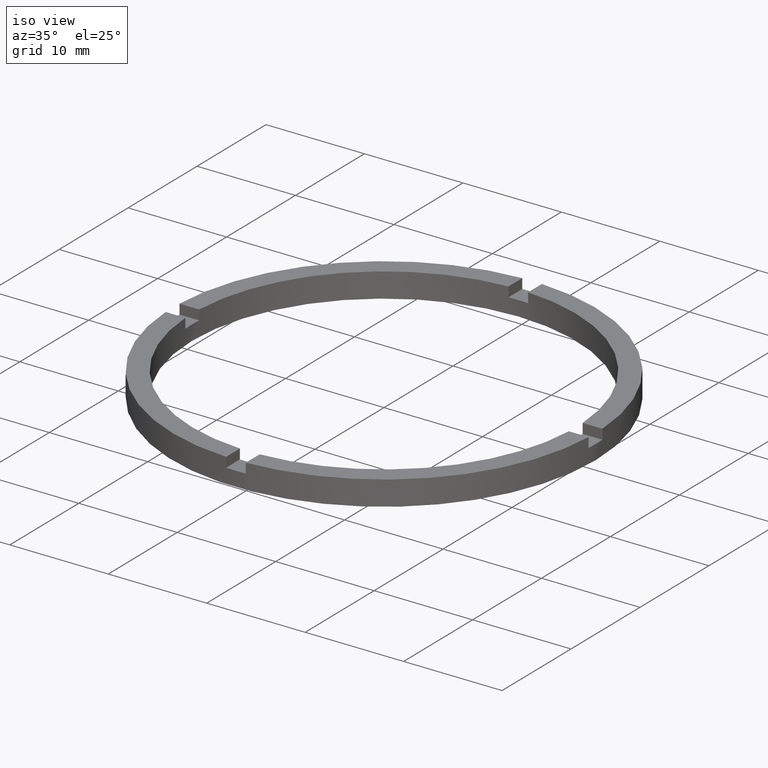
[diagram: clean part render]
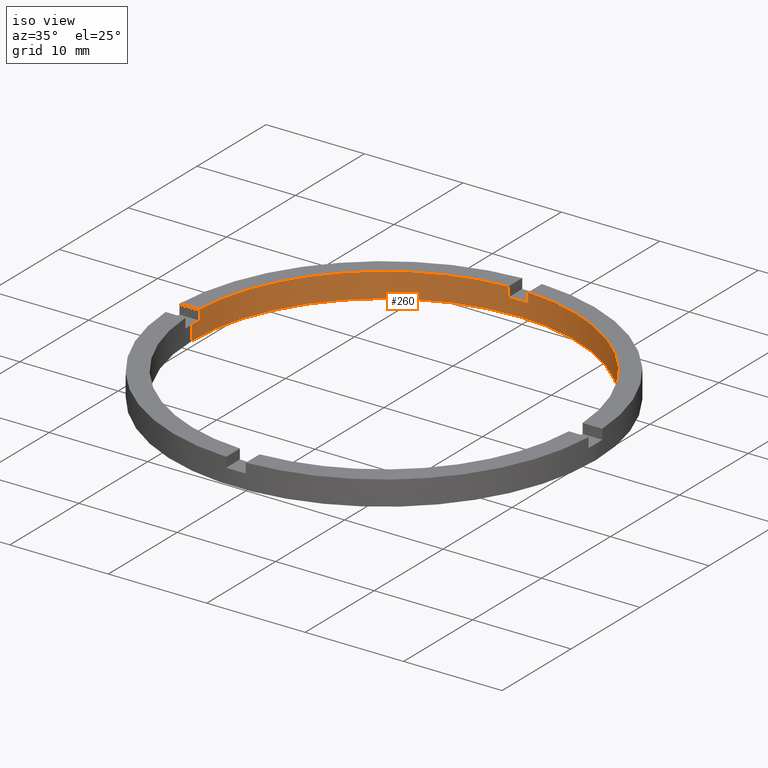
[diagram: same view with one face highlighted and labeled with its STEP entity id]
A machine part, iso view. The second image highlights one B-rep face of the part: STEP entity #260.
In plain terms, the highlighted cylindrical surface (partial cylindrical patch) has radius 19.5 mm, axis along (-0, -0, -1).
Its self-contained STEP definition (entity closure, byte-faithful):
#5 = CARTESIAN_POINT ( 'NONE',  ( -19.50000000000000000, 0.000000000000000000, 1.500000000000000000 ) ) ;
#10 = VECTOR ( 'NONE', #240, 1000.000000000000000 ) ;
#14 = EDGE_CURVE ( 'NONE', #647, #742, #169, .T. ) ;
#23 = CARTESIAN_POINT ( 'NONE',  ( -19.50000000000000000, 0.000000000000000000, 2.500000000000000000 ) ) ;
#30 = CARTESIAN_POINT ( 'NONE',  ( -19.47434209415044748, 0.9999999999999753530, 2.500000000000000000 ) ) ;
#47 = AXIS2_PLACEMENT_3D ( 'NONE', #744, #220, #323 ) ;
#50 = EDGE_CURVE ( 'NONE', #149, #697, #397, .T. ) ;
#56 = DIRECTION ( 'NONE',  ( 1.000000000000000000, 0.000000000000000000, 0.000000000000000000 ) ) ;
#57 = EDGE_CURVE ( 'NONE', #357, #367, #692, .T. ) ;
#58 = CARTESIAN_POINT ( 'NONE',  ( -19.50000000000000000, 0.000000000000000000, 0.000000000000000000 ) ) ;
#63 = DIRECTION ( 'NONE',  ( 1.000000000000000000, 0.000000000000000000, 0.000000000000000000 ) ) ;
#66 = AXIS2_PLACEMENT_3D ( 'NONE', #527, #354, #298 ) ;
#67 = CARTESIAN_POINT ( 'NONE',  ( 0.9999999999999744649, 19.47434209415044748, 1.500000000000000000 ) ) ;
#95 = ORIENTED_EDGE ( 'NONE', *, *, #304, .T. ) ;
#101 = VERTEX_POINT ( 'NONE', #468 ) ;
#108 = VERTEX_POINT ( 'NONE', #268 ) ;
#113 = VERTEX_POINT ( 'NONE', #743 ) ;
#115 = DIRECTION ( 'NONE',  ( -0.000000000000000000, -0.000000000000000000, -1.000000000000000000 ) ) ;
#117 = AXIS2_PLACEMENT_3D ( 'NONE', #202, #246, #56 ) ;
#127 = DIRECTION ( 'NONE',  ( 1.000000000000000000, 0.000000000000000000, 0.000000000000000000 ) ) ;
#128 = ORIENTED_EDGE ( 'NONE', *, *, #327, .F. ) ;
#148 = ORIENTED_EDGE ( 'NONE', *, *, #366, .F. ) ;
#149 = VERTEX_POINT ( 'NONE', #401 ) ;
#151 = DIRECTION ( 'NONE',  ( 0.000000000000000000, -0.000000000000000000, 1.000000000000000000 ) ) ;
#153 = ORIENTED_EDGE ( 'NONE', *, *, #57, .F. ) ;
#156 = CARTESIAN_POINT ( 'NONE',  ( 19.47434209415045459, 0.9999999999998419042, 2.500000000000000000 ) ) ;
#169 = CIRCLE ( 'NONE', #598, 19.50000000000000000 ) ;
#171 = ORIENTED_EDGE ( 'NONE', *, *, #349, .F. ) ;
#202 = CARTESIAN_POINT ( 'NONE',  ( 0.000000000000000000, 0.000000000000000000, 2.500000000000000000 ) ) ;
#210 = DIRECTION ( 'NONE',  ( -1.000000000000000000, 0.000000000000000000, 0.000000000000000000 ) ) ;
#220 = DIRECTION ( 'NONE',  ( 0.000000000000000000, 0.000000000000000000, 1.000000000000000000 ) ) ;
#225 = CIRCLE ( 'NONE', #117, 19.50000000000000000 ) ;
#235 = CIRCLE ( 'NONE', #66, 19.50000000000000000 ) ;
#240 = DIRECTION ( 'NONE',  ( 0.000000000000000000, 0.000000000000000000, 1.000000000000000000 ) ) ;
#241 = DIRECTION ( 'NONE',  ( -0.000000000000000000, -0.000000000000000000, -1.000000000000000000 ) ) ;
#246 = DIRECTION ( 'NONE',  ( 0.000000000000000000, 0.000000000000000000, 1.000000000000000000 ) ) ;
#248 = VECTOR ( 'NONE', #504, 1000.000000000000000 ) ;
#251 = VECTOR ( 'NONE', #588, 1000.000000000000000 ) ;
#256 = LINE ( 'NONE', #345, #10 ) ;
#257 = DIRECTION ( 'NONE',  ( 0.000000000000000000, 0.000000000000000000, 1.000000000000000000 ) ) ;
#258 = CIRCLE ( 'NONE', #47, 19.50000000000000000 ) ;
#260 = ADVANCED_FACE ( 'NONE', ( #717 ), #710, .F. ) ;
#263 = CARTESIAN_POINT ( 'NONE',  ( 0.9999999999999744649, 19.47434209415044748, 2.500000000000000000 ) ) ;
#265 = AXIS2_PLACEMENT_3D ( 'NONE', #719, #151, #633 ) ;
#268 = CARTESIAN_POINT ( 'NONE',  ( 19.50000000000000000, 2.388061258337338939E-15, 0.000000000000000000 ) ) ;
#293 = CARTESIAN_POINT ( 'NONE',  ( 0.9999999999999744649, 19.47434209415044748, 2.500000000000000000 ) ) ;
#298 = DIRECTION ( 'NONE',  ( 1.000000000000000000, 0.000000000000000000, 0.000000000000000000 ) ) ;
#304 = EDGE_CURVE ( 'NONE', #101, #367, #225, .T. ) ;
#307 = CARTESIAN_POINT ( 'NONE',  ( 0.000000000000000000, 0.000000000000000000, 1.500000000000000000 ) ) ;
#323 = DIRECTION ( 'NONE',  ( 1.000000000000000000, 0.000000000000000000, 0.000000000000000000 ) ) ;
#327 = EDGE_CURVE ( 'NONE', #108, #450, #235, .T. ) ;
#341 = CARTESIAN_POINT ( 'NONE',  ( 19.50000000000000000, 2.388061258337338939E-15, 1.500000000000000000 ) ) ;
#345 = CARTESIAN_POINT ( 'NONE',  ( -19.47434209415044748, 0.9999999999999753530, 2.500000000000000000 ) ) ;
#348 = ORIENTED_EDGE ( 'NONE', *, *, #445, .T. ) ;
#349 = EDGE_CURVE ( 'NONE', #622, #108, #514, .T. ) ;
#353 = EDGE_LOOP ( 'NONE', ( #171, #649, #148, #95, #153, #679, #655, #641, #671, #646, #348, #128 ) ) ;
#354 = DIRECTION ( 'NONE',  ( 0.000000000000000000, 0.000000000000000000, 1.000000000000000000 ) ) ;
#357 = VERTEX_POINT ( 'NONE', #67 ) ;
#366 = EDGE_CURVE ( 'NONE', #101, #691, #776, .T. ) ;
#367 = VERTEX_POINT ( 'NONE', #293 ) ;
#376 = CARTESIAN_POINT ( 'NONE',  ( 0.000000000000000000, 0.000000000000000000, 2.500000000000000000 ) ) ;
#379 = EDGE_CURVE ( 'NONE', #149, #113, #762, .T. ) ;
#385 = CARTESIAN_POINT ( 'NONE',  ( 19.50000000000000000, 2.388061258337338939E-15, 2.500000000000000000 ) ) ;
#397 = CIRCLE ( 'NONE', #593, 19.50000000000000000 ) ;
#401 = CARTESIAN_POINT ( 'NONE',  ( -1.000000000000025535, 19.47434209415044748, 2.500000000000000000 ) ) ;
#413 = AXIS2_PLACEMENT_3D ( 'NONE', #629, #115, #210 ) ;
#445 = EDGE_CURVE ( 'NONE', #742, #450, #503, .T. ) ;
#450 = VERTEX_POINT ( 'NONE', #58 ) ;
#468 = CARTESIAN_POINT ( 'NONE',  ( 19.47434209415045459, 0.9999999999998419042, 2.500000000000000000 ) ) ;
#480 = EDGE_CURVE ( 'NONE', #357, #113, #507, .T. ) ;
#503 = LINE ( 'NONE', #23, #248 ) ;
#504 = DIRECTION ( 'NONE',  ( -0.000000000000000000, -0.000000000000000000, -1.000000000000000000 ) ) ;
#507 = CIRCLE ( 'NONE', #265, 19.50000000000000000 ) ;
#510 = VECTOR ( 'NONE', #516, 1000.000000000000000 ) ;
#514 = LINE ( 'NONE', #385, #510 ) ;
#516 = DIRECTION ( 'NONE',  ( -0.000000000000000000, -0.000000000000000000, -1.000000000000000000 ) ) ;
#527 = CARTESIAN_POINT ( 'NONE',  ( 0.000000000000000000, 0.000000000000000000, 0.000000000000000000 ) ) ;
#533 = CARTESIAN_POINT ( 'NONE',  ( -1.000000000000025535, 19.47434209415044748, 2.500000000000000000 ) ) ;
#538 = EDGE_CURVE ( 'NONE', #647, #697, #256, .T. ) ;
#540 = EDGE_CURVE ( 'NONE', #622, #691, #258, .T. ) ;
#561 = DIRECTION ( 'NONE',  ( 0.000000000000000000, 0.000000000000000000, 1.000000000000000000 ) ) ;
#566 = DIRECTION ( 'NONE',  ( 0.000000000000000000, 0.000000000000000000, 1.000000000000000000 ) ) ;
#576 = CARTESIAN_POINT ( 'NONE',  ( -19.47434209415044748, 0.9999999999999753530, 1.500000000000000000 ) ) ;
#579 = CARTESIAN_POINT ( 'NONE',  ( 19.47434209415045459, 0.9999999999998419042, 1.500000000000000000 ) ) ;
#588 = DIRECTION ( 'NONE',  ( -0.000000000000000000, -0.000000000000000000, -1.000000000000000000 ) ) ;
#593 = AXIS2_PLACEMENT_3D ( 'NONE', #376, #566, #127 ) ;
#598 = AXIS2_PLACEMENT_3D ( 'NONE', #307, #561, #63 ) ;
#622 = VERTEX_POINT ( 'NONE', #341 ) ;
#629 = CARTESIAN_POINT ( 'NONE',  ( 0.000000000000000000, 0.000000000000000000, 2.500000000000000000 ) ) ;
#633 = DIRECTION ( 'NONE',  ( 1.000000000000000000, 0.000000000000000000, 0.000000000000000000 ) ) ;
#641 = ORIENTED_EDGE ( 'NONE', *, *, #50, .T. ) ;
#646 = ORIENTED_EDGE ( 'NONE', *, *, #14, .T. ) ;
#647 = VERTEX_POINT ( 'NONE', #576 ) ;
#649 = ORIENTED_EDGE ( 'NONE', *, *, #540, .T. ) ;
#655 = ORIENTED_EDGE ( 'NONE', *, *, #379, .F. ) ;
#671 = ORIENTED_EDGE ( 'NONE', *, *, #538, .F. ) ;
#679 = ORIENTED_EDGE ( 'NONE', *, *, #480, .T. ) ;
#691 = VERTEX_POINT ( 'NONE', #579 ) ;
#692 = LINE ( 'NONE', #263, #703 ) ;
#697 = VERTEX_POINT ( 'NONE', #30 ) ;
#703 = VECTOR ( 'NONE', #257, 1000.000000000000000 ) ;
#710 = CYLINDRICAL_SURFACE ( 'NONE', #413, 19.50000000000000000 ) ;
#717 = FACE_OUTER_BOUND ( 'NONE', #353, .T. ) ;
#719 = CARTESIAN_POINT ( 'NONE',  ( 0.000000000000000000, 0.000000000000000000, 1.500000000000000000 ) ) ;
#742 = VERTEX_POINT ( 'NONE', #5 ) ;
#743 = CARTESIAN_POINT ( 'NONE',  ( -1.000000000000025535, 19.47434209415044748, 1.500000000000000000 ) ) ;
#744 = CARTESIAN_POINT ( 'NONE',  ( 0.000000000000000000, 0.000000000000000000, 1.500000000000000000 ) ) ;
#762 = LINE ( 'NONE', #533, #251 ) ;
#770 = VECTOR ( 'NONE', #241, 1000.000000000000000 ) ;
#776 = LINE ( 'NONE', #156, #770 ) ;